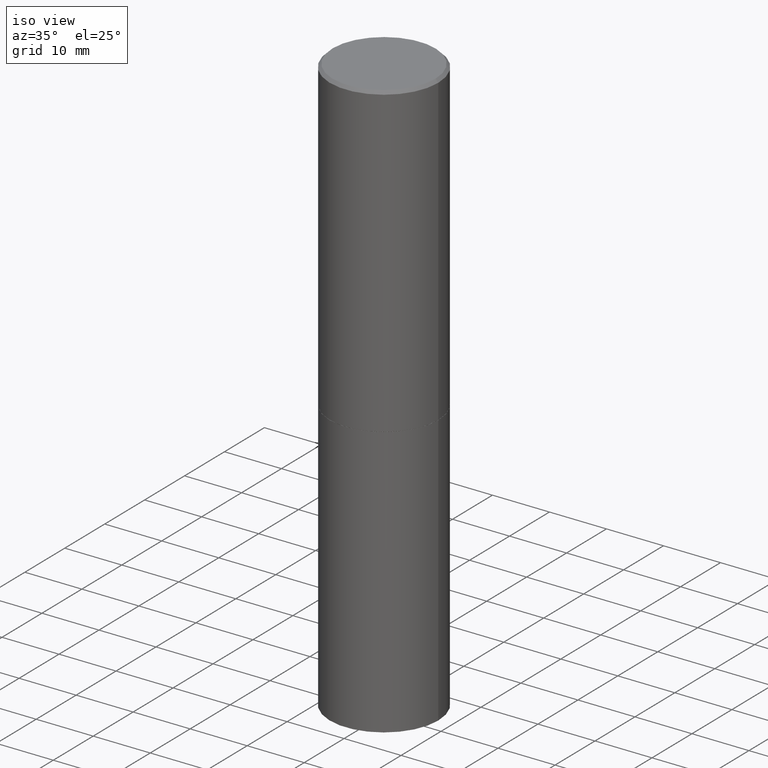
[diagram: clean part render]
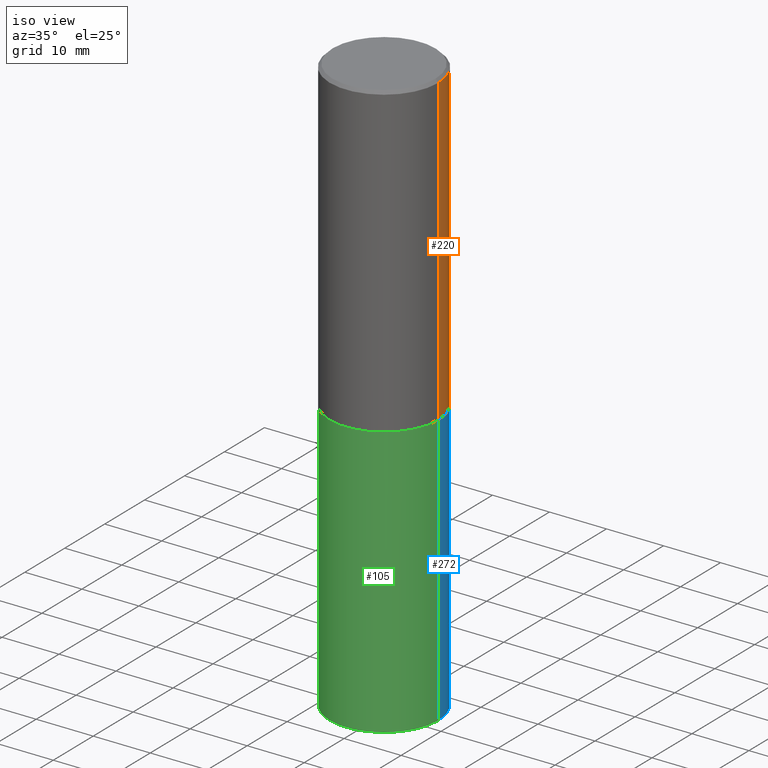
[diagram: same view with three faces highlighted in distinct colors, each labeled with its STEP entity id]
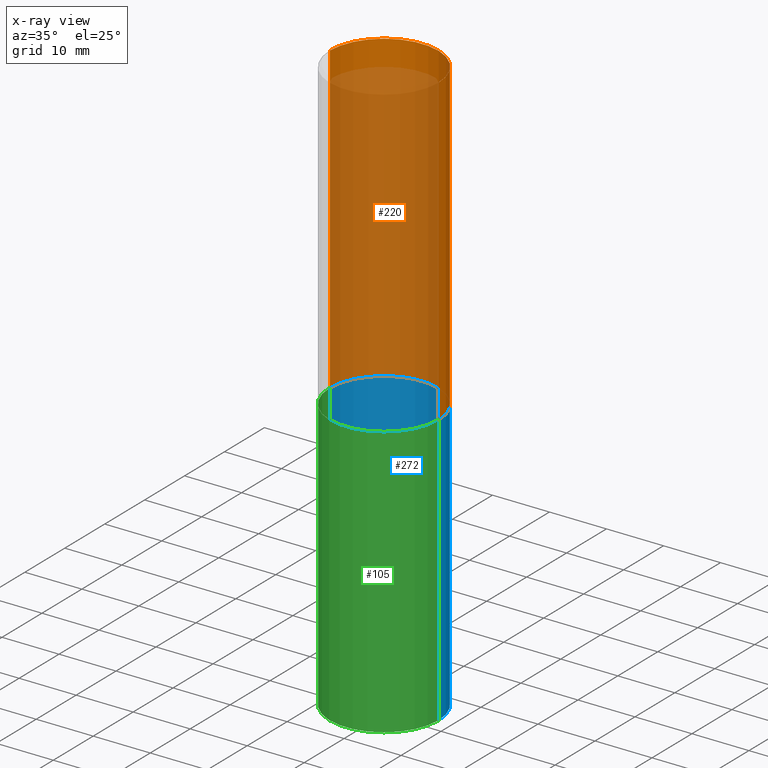
[diagram: x-ray of the same camera — body ghosted, the three highlighted faces saturated]
A machine part, iso view with three faces highlighted in distinct colors.
The next image is the same camera in x-ray (body ghosted, the three faces saturated) — at least one of them is partly hidden behind the body in this view.
Their STEP definitions:

[orange] entity #220 — the highlighted cylindrical surface (partial cylindrical patch) has radius 9.525 mm, axis along (-0, 0, 1).
#20 = EDGE_LOOP ( 'NONE', ( #125, #137, #106, #194 ) ) ;
#28 = AXIS2_PLACEMENT_3D ( 'NONE', #41, #126, #237 ) ;
#39 = CARTESIAN_POINT ( 'NONE',  ( -0.3749999999999998335, 2.548781377355485141E-15, -0.02000000000000009062 ) ) ;
#41 = CARTESIAN_POINT ( 'NONE',  ( 4.890937612370295054E-31, -6.982962677686322424E-17, -0.02000000000000009062 ) ) ;
#69 = LINE ( 'NONE', #186, #142 ) ;
#71 = DIRECTION ( 'NONE',  ( -2.445468806185136597E-29, 3.491481338843145583E-15, 1.000000000000000000 ) ) ;
#73 = CYLINDRICAL_SURFACE ( 'NONE', #315, 0.3749999999999999445 ) ;
#78 = VERTEX_POINT ( 'NONE', #280 ) ;
#91 = LINE ( 'NONE', #191, #361 ) ;
#104 = FACE_OUTER_BOUND ( 'NONE', #20, .T. ) ;
#106 = ORIENTED_EDGE ( 'NONE', *, *, #151, .F. ) ;
#121 = AXIS2_PLACEMENT_3D ( 'NONE', #326, #71, #189 ) ;
#125 = ORIENTED_EDGE ( 'NONE', *, *, #177, .T. ) ;
#126 = DIRECTION ( 'NONE',  ( -2.445468806185136597E-29, 3.491481338843145583E-15, 1.000000000000000000 ) ) ;
#137 = ORIENTED_EDGE ( 'NONE', *, *, #143, .T. ) ;
#142 = VECTOR ( 'NONE', #294, 39.37007874015748143 ) ;
#143 = EDGE_CURVE ( 'NONE', #289, #277, #91, .T. ) ;
#147 = EDGE_CURVE ( 'NONE', #261, #78, #69, .T. ) ;
#151 = EDGE_CURVE ( 'NONE', #78, #277, #192, .T. ) ;
#168 = CARTESIAN_POINT ( 'NONE',  ( 0.000000000000000000, 0.000000000000000000, 0.000000000000000000 ) ) ;
#177 = EDGE_CURVE ( 'NONE', #261, #289, #228, .T. ) ;
#181 = DIRECTION ( 'NONE',  ( -2.445468806185136877E-29, 3.491481338843145188E-15, 1.000000000000000000 ) ) ;
#186 = CARTESIAN_POINT ( 'NONE',  ( 0.3749999999999999445, -2.618611004132349622E-15, 1.828566290923475642E-29 ) ) ;
#189 = DIRECTION ( 'NONE',  ( 1.000000000000000000, -6.982962677686264344E-15, 0.000000000000000000 ) ) ;
#191 = CARTESIAN_POINT ( 'NONE',  ( -0.3749999999999999445, 2.664535259100375303E-15, -1.844600658845589318E-29 ) ) ;
#192 = CIRCLE ( 'NONE', #28, 0.3749999999999998335 ) ;
#194 = ORIENTED_EDGE ( 'NONE', *, *, #147, .F. ) ;
#198 = DIRECTION ( 'NONE',  ( 1.000000000000000000, -6.982962677686266711E-15, 4.876176775795935793E-29 ) ) ;
#220 = ADVANCED_FACE ( 'NONE', ( #104 ), #73, .T. ) ;
#228 = CIRCLE ( 'NONE', #121, 0.3750000000000001665 ) ;
#237 = DIRECTION ( 'NONE',  ( 1.000000000000000000, -6.982962677686265922E-15, 0.000000000000000000 ) ) ;
#245 = CARTESIAN_POINT ( 'NONE',  ( -0.3750000000000001110, -1.078332736139473696E-15, -2.123999999999999666 ) ) ;
#261 = VERTEX_POINT ( 'NONE', #291 ) ;
#277 = VERTEX_POINT ( 'NONE', #39 ) ;
#280 = CARTESIAN_POINT ( 'NONE',  ( 0.3749999999999998335, -2.642516375941186451E-15, -0.02000000000000009062 ) ) ;
#289 = VERTEX_POINT ( 'NONE', #245 ) ;
#291 = CARTESIAN_POINT ( 'NONE',  ( 0.3750000000000001665, -1.003451736783519063E-14, -2.123999999999999666 ) ) ;
#294 = DIRECTION ( 'NONE',  ( -2.445468806185136877E-29, 3.491481338843145188E-15, 1.000000000000000000 ) ) ;
#315 = AXIS2_PLACEMENT_3D ( 'NONE', #168, #360, #198 ) ;
#326 = CARTESIAN_POINT ( 'NONE',  ( 5.194175744337229665E-29, -7.415906363702840616E-15, -2.123999999999999666 ) ) ;
#360 = DIRECTION ( 'NONE',  ( -2.445468806185136597E-29, 3.491481338843145583E-15, 1.000000000000000000 ) ) ;
#361 = VECTOR ( 'NONE', #181, 39.37007874015748143 ) ;

[blue] entity #272 — the highlighted cylindrical surface (partial cylindrical patch) has radius 9.525 mm, axis along (-0, 0, 1).
#6 = VERTEX_POINT ( 'NONE', #250 ) ;
#9 = FACE_OUTER_BOUND ( 'NONE', #338, .T. ) ;
#14 = DIRECTION ( 'NONE',  ( 1.000000000000000000, -6.982962677686266711E-15, 0.000000000000000000 ) ) ;
#25 = CIRCLE ( 'NONE', #337, 0.3750000000000000555 ) ;
#40 = EDGE_CURVE ( 'NONE', #231, #6, #345, .T. ) ;
#50 = LINE ( 'NONE', #164, #158 ) ;
#51 = CARTESIAN_POINT ( 'NONE',  ( 0.3750000000000000555, -1.003800884917403364E-14, -2.125000000000000000 ) ) ;
#63 = CARTESIAN_POINT ( 'NONE',  ( 0.3750000000000000555, -1.658453635950493392E-14, -4.000000000000000000 ) ) ;
#68 = CYLINDRICAL_SURFACE ( 'NONE', #224, 0.3750000000000000555 ) ;
#87 = CARTESIAN_POINT ( 'NONE',  ( 9.781875224740546387E-29, -1.396592535537258233E-14, -4.000000000000000000 ) ) ;
#94 = ORIENTED_EDGE ( 'NONE', *, *, #306, .T. ) ;
#124 = CARTESIAN_POINT ( 'NONE',  ( 0.000000000000000000, 0.000000000000000000, 0.000000000000000000 ) ) ;
#141 = VERTEX_POINT ( 'NONE', #63 ) ;
#156 = DIRECTION ( 'NONE',  ( -2.445468806185136597E-29, 3.491481338843145583E-15, 1.000000000000000000 ) ) ;
#158 = VECTOR ( 'NONE', #251, 39.37007874015748143 ) ;
#164 = CARTESIAN_POINT ( 'NONE',  ( -0.3750000000000000555, 2.664535259100376091E-15, -1.844600658845589598E-29 ) ) ;
#165 = VECTOR ( 'NONE', #347, 39.37007874015748143 ) ;
#178 = ORIENTED_EDGE ( 'NONE', *, *, #314, .T. ) ;
#185 = DIRECTION ( 'NONE',  ( -2.445468806185136597E-29, 3.491481338843145583E-15, 1.000000000000000000 ) ) ;
#193 = CARTESIAN_POINT ( 'NONE',  ( 5.196621213143415268E-29, -7.419397845041683624E-15, -2.125000000000000000 ) ) ;
#200 = AXIS2_PLACEMENT_3D ( 'NONE', #193, #156, #273 ) ;
#215 = ORIENTED_EDGE ( 'NONE', *, *, #310, .F. ) ;
#224 = AXIS2_PLACEMENT_3D ( 'NONE', #124, #185, #293 ) ;
#230 = CARTESIAN_POINT ( 'NONE',  ( 0.3750000000000000555, -2.618611004132350016E-15, 1.828566290923476203E-29 ) ) ;
#231 = VERTEX_POINT ( 'NONE', #51 ) ;
#239 = LINE ( 'NONE', #230, #165 ) ;
#250 = CARTESIAN_POINT ( 'NONE',  ( -0.3750000000000000555, -8.028126341106757280E-15, -2.125000000000000000 ) ) ;
#251 = DIRECTION ( 'NONE',  ( -2.445468806185136877E-29, 3.491481338843145188E-15, 1.000000000000000000 ) ) ;
#272 = ADVANCED_FACE ( 'NONE', ( #9 ), #68, .T. ) ;
#273 = DIRECTION ( 'NONE',  ( 1.000000000000000000, -6.982962677686266711E-15, 0.000000000000000000 ) ) ;
#286 = CARTESIAN_POINT ( 'NONE',  ( -0.3750000000000000555, -8.028126341106757280E-15, -4.000000000000000000 ) ) ;
#293 = DIRECTION ( 'NONE',  ( 1.000000000000000000, -6.982962677686265922E-15, 4.876176775795935793E-29 ) ) ;
#303 = ORIENTED_EDGE ( 'NONE', *, *, #40, .F. ) ;
#306 = EDGE_CURVE ( 'NONE', #318, #6, #50, .T. ) ;
#310 = EDGE_CURVE ( 'NONE', #141, #231, #239, .T. ) ;
#314 = EDGE_CURVE ( 'NONE', #141, #318, #25, .T. ) ;
#316 = DIRECTION ( 'NONE',  ( -2.445468806185136597E-29, 3.491481338843145583E-15, 1.000000000000000000 ) ) ;
#318 = VERTEX_POINT ( 'NONE', #286 ) ;
#337 = AXIS2_PLACEMENT_3D ( 'NONE', #87, #316, #14 ) ;
#338 = EDGE_LOOP ( 'NONE', ( #178, #94, #303, #215 ) ) ;
#345 = CIRCLE ( 'NONE', #200, 0.3750000000000000555 ) ;
#347 = DIRECTION ( 'NONE',  ( -2.445468806185136877E-29, 3.491481338843145188E-15, 1.000000000000000000 ) ) ;

[green] entity #105 — the highlighted cylindrical surface (partial cylindrical patch) has radius 9.525 mm, axis along (-0, 0, 1).
#6 = VERTEX_POINT ( 'NONE', #250 ) ;
#15 = ORIENTED_EDGE ( 'NONE', *, *, #310, .T. ) ;
#22 = AXIS2_PLACEMENT_3D ( 'NONE', #109, #144, #254 ) ;
#32 = CIRCLE ( 'NONE', #22, 0.3750000000000000555 ) ;
#35 = EDGE_CURVE ( 'NONE', #6, #231, #32, .T. ) ;
#50 = LINE ( 'NONE', #164, #158 ) ;
#51 = CARTESIAN_POINT ( 'NONE',  ( 0.3750000000000000555, -1.003800884917403364E-14, -2.125000000000000000 ) ) ;
#52 = AXIS2_PLACEMENT_3D ( 'NONE', #232, #86, #148 ) ;
#58 = ORIENTED_EDGE ( 'NONE', *, *, #344, .T. ) ;
#60 = AXIS2_PLACEMENT_3D ( 'NONE', #92, #300, #99 ) ;
#61 = ORIENTED_EDGE ( 'NONE', *, *, #35, .F. ) ;
#63 = CARTESIAN_POINT ( 'NONE',  ( 0.3750000000000000555, -1.658453635950493392E-14, -4.000000000000000000 ) ) ;
#86 = DIRECTION ( 'NONE',  ( -2.445468806185136597E-29, 3.491481338843145583E-15, 1.000000000000000000 ) ) ;
#92 = CARTESIAN_POINT ( 'NONE',  ( 9.781875224740546387E-29, -1.396592535537258233E-14, -4.000000000000000000 ) ) ;
#99 = DIRECTION ( 'NONE',  ( 1.000000000000000000, -6.982962677686266711E-15, 0.000000000000000000 ) ) ;
#105 = ADVANCED_FACE ( 'NONE', ( #340 ), #343, .T. ) ;
#109 = CARTESIAN_POINT ( 'NONE',  ( 5.196621213143415268E-29, -7.419397845041683624E-15, -2.125000000000000000 ) ) ;
#141 = VERTEX_POINT ( 'NONE', #63 ) ;
#144 = DIRECTION ( 'NONE',  ( -2.445468806185136597E-29, 3.491481338843145583E-15, 1.000000000000000000 ) ) ;
#148 = DIRECTION ( 'NONE',  ( 1.000000000000000000, -6.982962677686265922E-15, 4.876176775795935793E-29 ) ) ;
#158 = VECTOR ( 'NONE', #251, 39.37007874015748143 ) ;
#164 = CARTESIAN_POINT ( 'NONE',  ( -0.3750000000000000555, 2.664535259100376091E-15, -1.844600658845589598E-29 ) ) ;
#165 = VECTOR ( 'NONE', #347, 39.37007874015748143 ) ;
#218 = EDGE_LOOP ( 'NONE', ( #348, #58, #15, #61 ) ) ;
#229 = CIRCLE ( 'NONE', #60, 0.3750000000000000555 ) ;
#230 = CARTESIAN_POINT ( 'NONE',  ( 0.3750000000000000555, -2.618611004132350016E-15, 1.828566290923476203E-29 ) ) ;
#231 = VERTEX_POINT ( 'NONE', #51 ) ;
#232 = CARTESIAN_POINT ( 'NONE',  ( 0.000000000000000000, 0.000000000000000000, 0.000000000000000000 ) ) ;
#239 = LINE ( 'NONE', #230, #165 ) ;
#250 = CARTESIAN_POINT ( 'NONE',  ( -0.3750000000000000555, -8.028126341106757280E-15, -2.125000000000000000 ) ) ;
#251 = DIRECTION ( 'NONE',  ( -2.445468806185136877E-29, 3.491481338843145188E-15, 1.000000000000000000 ) ) ;
#254 = DIRECTION ( 'NONE',  ( 1.000000000000000000, -6.982962677686266711E-15, 0.000000000000000000 ) ) ;
#286 = CARTESIAN_POINT ( 'NONE',  ( -0.3750000000000000555, -8.028126341106757280E-15, -4.000000000000000000 ) ) ;
#300 = DIRECTION ( 'NONE',  ( -2.445468806185136597E-29, 3.491481338843145583E-15, 1.000000000000000000 ) ) ;
#306 = EDGE_CURVE ( 'NONE', #318, #6, #50, .T. ) ;
#310 = EDGE_CURVE ( 'NONE', #141, #231, #239, .T. ) ;
#318 = VERTEX_POINT ( 'NONE', #286 ) ;
#340 = FACE_OUTER_BOUND ( 'NONE', #218, .T. ) ;
#343 = CYLINDRICAL_SURFACE ( 'NONE', #52, 0.3750000000000000555 ) ;
#344 = EDGE_CURVE ( 'NONE', #318, #141, #229, .T. ) ;
#347 = DIRECTION ( 'NONE',  ( -2.445468806185136877E-29, 3.491481338843145188E-15, 1.000000000000000000 ) ) ;
#348 = ORIENTED_EDGE ( 'NONE', *, *, #306, .F. ) ;